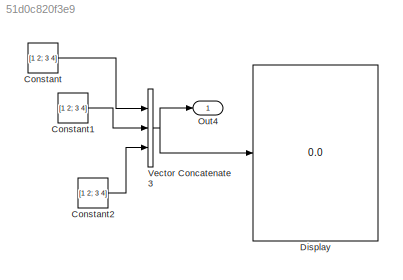
MODEL slx_51d0c820f3e9
KIND model
CONFIG AbsTol = auto
CONFIG EnableMultiTasking = on
CONFIG FixedStep = 0.1
CONFIG MaxStep = 1
CONFIG MinStep = auto
CONFIG RelTol = 1e-3
CONFIG SampleTimeConstraint = Unconstrained
CONFIG Solver = FixedStepAuto
CONFIG SolverName = FixedStepAuto
CONFIG StartTime = 0.0
CONFIG StopTime = 0
BLOCK [Constant] Constant
  Value = [1 2; 3 4]
BLOCK [Constant] Constant1
  Value = [1 2; 3 4]
BLOCK [Constant] Constant2
  Value = [1 2; 3 4]
BLOCK [Display] Display
  Decimation = 1
  Ports = [1]
BLOCK [Outport] Out4
  IconDisplay = Port number
BLOCK [Concatenate] Vector Concatenate3
  Mode = Multidimensional array
  NumInputs = 3
  Ports = [3, 1]
LINE Constant1:1 -> Vector Concatenate3:2
LINE Constant2:1 -> Vector Concatenate3:3
LINE Constant:1 -> Vector Concatenate3:1
NET Vector Concatenate3:1 -> Display:1, Out4:1
note: NET lines group one-source signal fan-out (src -> all destinations, sorted); 1:1 wires keep LINE
